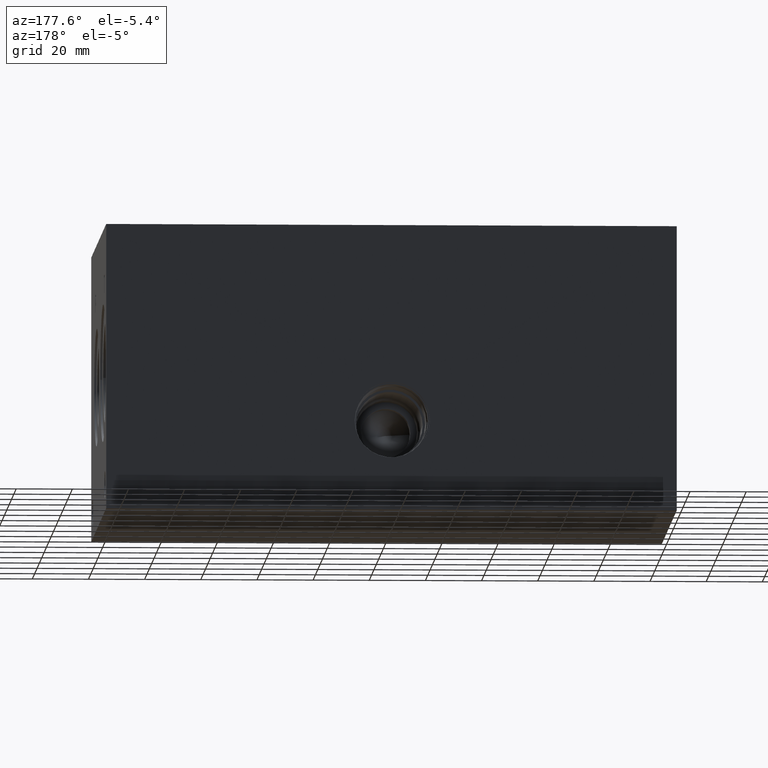
[diagram: clean part render]
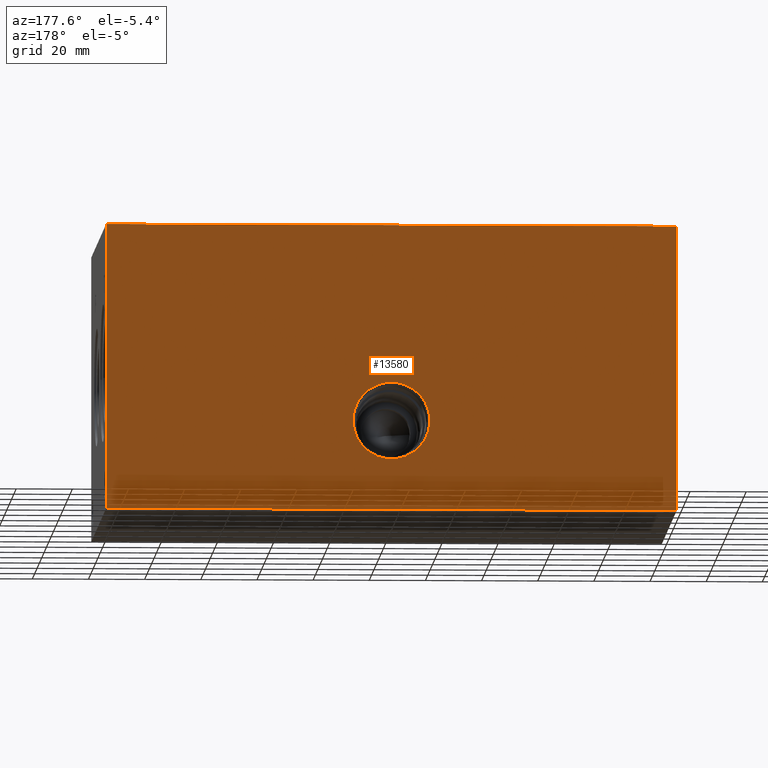
[diagram: same view with one face highlighted and labeled with its STEP entity id]
A machine part, auxiliary view. The second image highlights one B-rep face of the part: STEP entity #13580.
In plain terms, the highlighted planar face has unit normal (0, 1, 0).
Its self-contained STEP definition (entity closure, byte-faithful):
#220=CIRCLE('',#13961,13.6906);
#221=CIRCLE('',#13962,13.6906);
#679=FACE_BOUND('',#2590,.T.);
#1079=PLANE('',#14537);
#1784=FACE_OUTER_BOUND('',#2589,.T.);
#2589=EDGE_LOOP('',(#12185,#12186,#12187,#12188));
#2590=EDGE_LOOP('',(#12189,#12190));
#2654=LINE('',#17834,#3851);
#2716=LINE('',#18112,#3913);
#3816=LINE('',#23452,#5013);
#3817=LINE('',#23453,#5014);
#3851=VECTOR('',#14597,10.);
#3913=VECTOR('',#14713,10.);
#5013=VECTOR('',#17617,10.);
#5014=VECTOR('',#17618,10.);
#5346=VERTEX_POINT('',#17831);
#5347=VERTEX_POINT('',#17833);
#5405=VERTEX_POINT('',#18105);
#5408=VERTEX_POINT('',#18110);
#6219=VERTEX_POINT('',#22297);
#6220=VERTEX_POINT('',#22298);
#6668=EDGE_CURVE('',#5346,#5347,#2654,.T.);
#6754=EDGE_CURVE('',#5405,#5408,#2716,.T.);
#7962=EDGE_CURVE('',#6219,#6220,#220,.T.);
#7963=EDGE_CURVE('',#6220,#6219,#221,.T.);
#8499=EDGE_CURVE('',#5346,#5405,#3816,.T.);
#8500=EDGE_CURVE('',#5347,#5408,#3817,.T.);
#12185=ORIENTED_EDGE('',*,*,#8499,.T.);
#12186=ORIENTED_EDGE('',*,*,#6754,.T.);
#12187=ORIENTED_EDGE('',*,*,#8500,.F.);
#12188=ORIENTED_EDGE('',*,*,#6668,.F.);
#12189=ORIENTED_EDGE('',*,*,#7962,.T.);
#12190=ORIENTED_EDGE('',*,*,#7963,.T.);
#13580=ADVANCED_FACE('',(#1784,#679),#1079,.T.);
#13961=AXIS2_PLACEMENT_3D('',#22299,#16285,#16286);
#13962=AXIS2_PLACEMENT_3D('',#22300,#16287,#16288);
#14537=AXIS2_PLACEMENT_3D('',#23451,#17615,#17616);
#14597=DIRECTION('',(0.,0.,1.));
#14713=DIRECTION('',(0.,0.,1.));
#16285=DIRECTION('center_axis',(0.,-1.,0.));
#16286=DIRECTION('ref_axis',(1.,0.,0.));
#16287=DIRECTION('center_axis',(0.,-1.,0.));
#16288=DIRECTION('ref_axis',(1.,0.,0.));
#17615=DIRECTION('center_axis',(0.,1.,0.));
#17616=DIRECTION('ref_axis',(-1.,0.,0.));
#17617=DIRECTION('',(-1.,0.,0.));
#17618=DIRECTION('',(-1.,0.,0.));
#17831=CARTESIAN_POINT('',(203.2,127.,0.));
#17833=CARTESIAN_POINT('',(203.2,127.,101.6));
#17834=CARTESIAN_POINT('',(203.2,127.,0.));
#18105=CARTESIAN_POINT('',(0.,127.,0.));
#18110=CARTESIAN_POINT('',(0.,127.,101.6));
#18112=CARTESIAN_POINT('',(0.,127.,0.));
#22297=CARTESIAN_POINT('',(115.2906,127.,31.75));
#22298=CARTESIAN_POINT('',(87.9094,127.,31.75));
#22299=CARTESIAN_POINT('Origin',(101.6,127.,31.75));
#22300=CARTESIAN_POINT('Origin',(101.6,127.,31.75));
#23451=CARTESIAN_POINT('Origin',(203.2,127.,0.));
#23452=CARTESIAN_POINT('',(203.2,127.,0.));
#23453=CARTESIAN_POINT('',(203.2,127.,101.6));